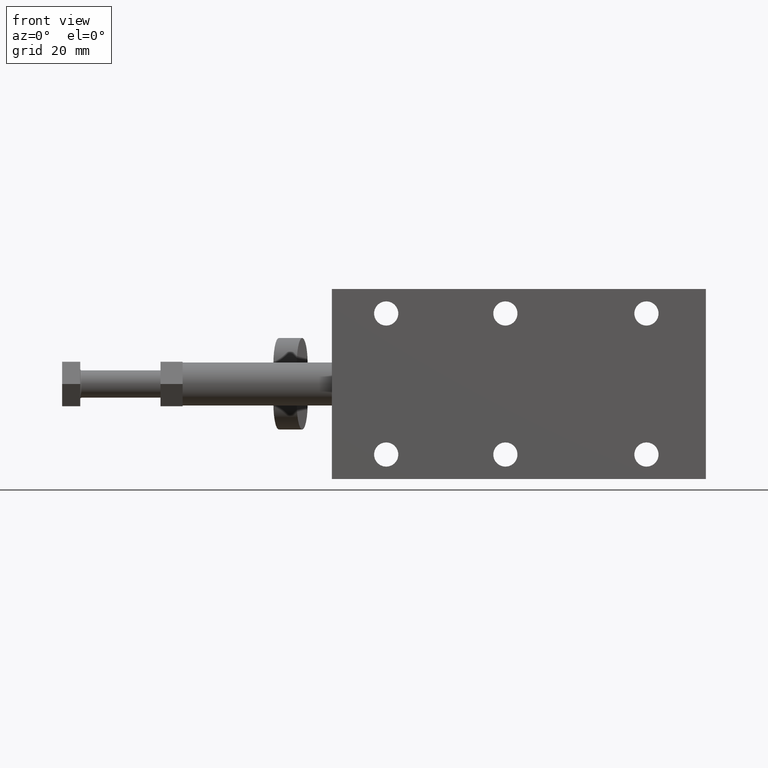
[diagram: clean part render]
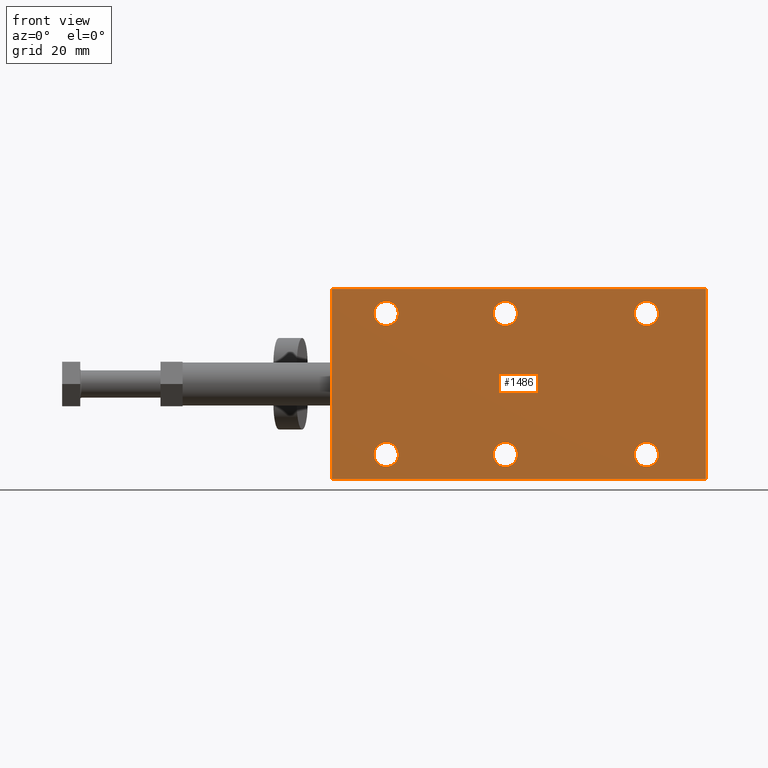
[diagram: same view with one face highlighted and labeled with its STEP entity id]
A machine part, front view. The second image highlights one B-rep face of the part: STEP entity #1486.
In plain terms, the highlighted planar face has unit normal (0, 1, 0).
Its self-contained STEP definition (entity closure, byte-faithful):
#16 = DIRECTION ( 'NONE',  ( 0.0000000000000000000, 0.0000000000000000000, -1.000000000000000000 ) ) ;
#81 = CIRCLE ( 'NONE', #2245, 3.549999999999997600 ) ;
#185 = EDGE_LOOP ( 'NONE', ( #6299, #2187 ) ) ;
#209 = AXIS2_PLACEMENT_3D ( 'NONE', #8143, #3986, #8827 ) ;
#271 = EDGE_LOOP ( 'NONE', ( #3604, #6260 ) ) ;
#345 = DIRECTION ( 'NONE',  ( 0.0000000000000000000, 0.0000000000000000000, 1.000000000000000000 ) ) ;
#378 = CARTESIAN_POINT ( 'NONE',  ( -3.949999999999988200, 0.0000000000000000000, -20.65000000000000200 ) ) ;
#462 = FACE_BOUND ( 'NONE', #966, .T. ) ;
#658 = FACE_BOUND ( 'NONE', #6781, .T. ) ;
#667 = CARTESIAN_POINT ( 'NONE',  ( 54.75000000000000000, 0.0000000000000000000, 27.79999999999999000 ) ) ;
#700 = VERTEX_POINT ( 'NONE', #7680 ) ;
#722 = CARTESIAN_POINT ( 'NONE',  ( 37.35000000000000900, 0.0000000000000000000, -24.19999999999999900 ) ) ;
#909 = CARTESIAN_POINT ( 'NONE',  ( -3.949999999999982900, 0.0000000000000000000, 20.64999999999998100 ) ) ;
#966 = EDGE_LOOP ( 'NONE', ( #3221, #8964 ) ) ;
#1099 = EDGE_CURVE ( 'NONE', #4387, #700, #8644, .T. ) ;
#1171 = EDGE_CURVE ( 'NONE', #3205, #5063, #3870, .T. ) ;
#1176 = ORIENTED_EDGE ( 'NONE', *, *, #5012, .T. ) ;
#1201 = CARTESIAN_POINT ( 'NONE',  ( -38.84999999999998700, 0.0000000000000000000, -20.65000000000000200 ) ) ;
#1205 = AXIS2_PLACEMENT_3D ( 'NONE', #8918, #1957, #6173 ) ;
#1439 = ORIENTED_EDGE ( 'NONE', *, *, #3817, .T. ) ;
#1486 = ADVANCED_FACE ( 'NONE', ( #6053, #4421, #658, #4191, #2321, #462, #7666 ), #5590, .F. ) ;
#1538 = LINE ( 'NONE', #3843, #6904 ) ;
#1616 = DIRECTION ( 'NONE',  ( 0.0000000000000000000, 0.0000000000000000000, -1.000000000000000000 ) ) ;
#1657 = DIRECTION ( 'NONE',  ( -0.0000000000000000000, 1.000000000000000000, 0.0000000000000000000 ) ) ;
#1901 = CARTESIAN_POINT ( 'NONE',  ( -3.949999999999982900, 0.0000000000000000000, 24.19999999999998200 ) ) ;
#1910 = DIRECTION ( 'NONE',  ( 0.0000000000000000000, 0.0000000000000000000, 1.000000000000000000 ) ) ;
#1922 = CARTESIAN_POINT ( 'NONE',  ( 37.35000000000001600, 0.0000000000000000000, 20.64999999999997400 ) ) ;
#1944 = VECTOR ( 'NONE', #4760, 1000.000000000000000 ) ;
#1957 = DIRECTION ( 'NONE',  ( 0.0000000000000000000, 1.000000000000000000, 0.0000000000000000000 ) ) ;
#2145 = ORIENTED_EDGE ( 'NONE', *, *, #3591, .F. ) ;
#2187 = ORIENTED_EDGE ( 'NONE', *, *, #7857, .T. ) ;
#2245 = AXIS2_PLACEMENT_3D ( 'NONE', #3623, #8476, #4341 ) ;
#2301 = EDGE_CURVE ( 'NONE', #6087, #2364, #4822, .T. ) ;
#2309 = AXIS2_PLACEMENT_3D ( 'NONE', #3232, #8121, #3970 ) ;
#2321 = FACE_BOUND ( 'NONE', #8054, .T. ) ;
#2362 = AXIS2_PLACEMENT_3D ( 'NONE', #1922, #6817, #2632 ) ;
#2364 = VERTEX_POINT ( 'NONE', #4914 ) ;
#2458 = AXIS2_PLACEMENT_3D ( 'NONE', #909, #5835, #1616 ) ;
#2484 = CIRCLE ( 'NONE', #2362, 3.550000000000004700 ) ;
#2541 = EDGE_CURVE ( 'NONE', #3306, #8348, #8280, .T. ) ;
#2557 = AXIS2_PLACEMENT_3D ( 'NONE', #378, #3187, #345 ) ;
#2598 = ORIENTED_EDGE ( 'NONE', *, *, #2541, .T. ) ;
#2632 = DIRECTION ( 'NONE',  ( 0.0000000000000000000, 0.0000000000000000000, -1.000000000000000000 ) ) ;
#2655 = LINE ( 'NONE', #4425, #6176 ) ;
#2739 = DIRECTION ( 'NONE',  ( 0.0000000000000000000, 1.000000000000000000, 0.0000000000000000000 ) ) ;
#2769 = VERTEX_POINT ( 'NONE', #6827 ) ;
#2856 = CARTESIAN_POINT ( 'NONE',  ( 37.35000000000001600, 0.0000000000000000000, 24.19999999999997800 ) ) ;
#2961 = ORIENTED_EDGE ( 'NONE', *, *, #5827, .F. ) ;
#2968 = CARTESIAN_POINT ( 'NONE',  ( -3.949999999999988200, 0.0000000000000000000, -20.65000000000000200 ) ) ;
#3187 = DIRECTION ( 'NONE',  ( 0.0000000000000000000, 1.000000000000000000, 0.0000000000000000000 ) ) ;
#3205 = VERTEX_POINT ( 'NONE', #6951 ) ;
#3221 = ORIENTED_EDGE ( 'NONE', *, *, #5299, .T. ) ;
#3232 = CARTESIAN_POINT ( 'NONE',  ( -3.949999999999982900, 0.0000000000000000000, 20.64999999999998100 ) ) ;
#3266 = CARTESIAN_POINT ( 'NONE',  ( -38.84999999999998700, 0.0000000000000000000, -17.10000000000000500 ) ) ;
#3306 = VERTEX_POINT ( 'NONE', #2856 ) ;
#3320 = CARTESIAN_POINT ( 'NONE',  ( 37.35000000000001600, 0.0000000000000000000, 17.09999999999996900 ) ) ;
#3440 = AXIS2_PLACEMENT_3D ( 'NONE', #5875, #1657, #6569 ) ;
#3508 = AXIS2_PLACEMENT_3D ( 'NONE', #8364, #4219, #16 ) ;
#3524 = CARTESIAN_POINT ( 'NONE',  ( -54.75000000000000000, 0.0000000000000000000, -27.79999999999999700 ) ) ;
#3543 = CIRCLE ( 'NONE', #2458, 3.550000000000001200 ) ;
#3591 = EDGE_CURVE ( 'NONE', #4440, #8266, #7313, .T. ) ;
#3604 = ORIENTED_EDGE ( 'NONE', *, *, #6188, .T. ) ;
#3623 = CARTESIAN_POINT ( 'NONE',  ( 37.35000000000000900, 0.0000000000000000000, -20.65000000000000200 ) ) ;
#3692 = DIRECTION ( 'NONE',  ( 0.0000000000000000000, 0.0000000000000000000, 1.000000000000000000 ) ) ;
#3817 = EDGE_CURVE ( 'NONE', #2364, #6087, #81, .T. ) ;
#3843 = CARTESIAN_POINT ( 'NONE',  ( 54.75000000000000000, 0.0000000000000000000, 27.79999999999999000 ) ) ;
#3870 = CIRCLE ( 'NONE', #5383, 3.549999999999997600 ) ;
#3885 = ORIENTED_EDGE ( 'NONE', *, *, #1099, .T. ) ;
#3970 = DIRECTION ( 'NONE',  ( 0.0000000000000000000, 0.0000000000000000000, -1.000000000000000000 ) ) ;
#3986 = DIRECTION ( 'NONE',  ( 0.0000000000000000000, 1.000000000000000000, 0.0000000000000000000 ) ) ;
#4130 = EDGE_CURVE ( 'NONE', #8348, #3306, #2484, .T. ) ;
#4191 = FACE_BOUND ( 'NONE', #4396, .T. ) ;
#4219 = DIRECTION ( 'NONE',  ( -0.0000000000000000000, 1.000000000000000000, 0.0000000000000000000 ) ) ;
#4281 = AXIS2_PLACEMENT_3D ( 'NONE', #6928, #2739, #7623 ) ;
#4326 = DIRECTION ( 'NONE',  ( 0.0000000000000000000, 0.0000000000000000000, -1.000000000000000000 ) ) ;
#4341 = DIRECTION ( 'NONE',  ( 0.0000000000000000000, 0.0000000000000000000, 1.000000000000000000 ) ) ;
#4367 = ORIENTED_EDGE ( 'NONE', *, *, #2301, .T. ) ;
#4387 = VERTEX_POINT ( 'NONE', #5675 ) ;
#4396 = EDGE_LOOP ( 'NONE', ( #1439, #4367 ) ) ;
#4421 = FACE_BOUND ( 'NONE', #271, .T. ) ;
#4425 = CARTESIAN_POINT ( 'NONE',  ( -54.75000000000000000, 0.0000000000000000000, -27.79999999999999700 ) ) ;
#4440 = VERTEX_POINT ( 'NONE', #3524 ) ;
#4646 = AXIS2_PLACEMENT_3D ( 'NONE', #1201, #6122, #1910 ) ;
#4700 = CARTESIAN_POINT ( 'NONE',  ( -54.74999999999998600, 0.0000000000000000000, 27.80000000000000400 ) ) ;
#4705 = EDGE_CURVE ( 'NONE', #2769, #8282, #8015, .T. ) ;
#4760 = DIRECTION ( 'NONE',  ( 2.496005001405477600E-016, -0.0000000000000000000, 1.000000000000000000 ) ) ;
#4822 = CIRCLE ( 'NONE', #4281, 3.549999999999997600 ) ;
#4855 = CIRCLE ( 'NONE', #5245, 3.550000000000001200 ) ;
#4877 = VERTEX_POINT ( 'NONE', #667 ) ;
#4914 = CARTESIAN_POINT ( 'NONE',  ( 37.35000000000000900, 0.0000000000000000000, -17.10000000000000500 ) ) ;
#5012 = EDGE_CURVE ( 'NONE', #700, #4387, #4855, .T. ) ;
#5059 = ORIENTED_EDGE ( 'NONE', *, *, #6701, .F. ) ;
#5063 = VERTEX_POINT ( 'NONE', #7193 ) ;
#5115 = DIRECTION ( 'NONE',  ( -1.000000000000000000, -0.0000000000000000000, 1.267377881992187900E-016 ) ) ;
#5245 = AXIS2_PLACEMENT_3D ( 'NONE', #2968, #7842, #3692 ) ;
#5251 = CIRCLE ( 'NONE', #3508, 3.549999999999997600 ) ;
#5277 = VECTOR ( 'NONE', #7319, 1000.000000000000000 ) ;
#5299 = EDGE_CURVE ( 'NONE', #8844, #6936, #8538, .T. ) ;
#5319 = ORIENTED_EDGE ( 'NONE', *, *, #5850, .F. ) ;
#5383 = AXIS2_PLACEMENT_3D ( 'NONE', #8074, #8789, #4326 ) ;
#5590 = PLANE ( 'NONE',  #1205 ) ;
#5596 = CIRCLE ( 'NONE', #4646, 3.549999999999997600 ) ;
#5675 = CARTESIAN_POINT ( 'NONE',  ( -3.949999999999988200, 0.0000000000000000000, -17.10000000000000100 ) ) ;
#5733 = LINE ( 'NONE', #6629, #5277 ) ;
#5827 = EDGE_CURVE ( 'NONE', #4877, #8606, #5733, .T. ) ;
#5835 = DIRECTION ( 'NONE',  ( -0.0000000000000000000, 1.000000000000000000, 0.0000000000000000000 ) ) ;
#5850 = EDGE_CURVE ( 'NONE', #8266, #4877, #1538, .T. ) ;
#5875 = CARTESIAN_POINT ( 'NONE',  ( 37.35000000000001600, 0.0000000000000000000, 20.64999999999997400 ) ) ;
#6053 = FACE_BOUND ( 'NONE', #185, .T. ) ;
#6087 = VERTEX_POINT ( 'NONE', #722 ) ;
#6122 = DIRECTION ( 'NONE',  ( 0.0000000000000000000, 1.000000000000000000, 0.0000000000000000000 ) ) ;
#6173 = DIRECTION ( 'NONE',  ( 0.0000000000000000000, -0.0000000000000000000, 1.000000000000000000 ) ) ;
#6176 = VECTOR ( 'NONE', #5115, 1000.000000000000000 ) ;
#6188 = EDGE_CURVE ( 'NONE', #8282, #2769, #3543, .T. ) ;
#6260 = ORIENTED_EDGE ( 'NONE', *, *, #4705, .T. ) ;
#6299 = ORIENTED_EDGE ( 'NONE', *, *, #1171, .T. ) ;
#6569 = DIRECTION ( 'NONE',  ( 0.0000000000000000000, 0.0000000000000000000, -1.000000000000000000 ) ) ;
#6629 = CARTESIAN_POINT ( 'NONE',  ( 54.75000000000000000, 0.0000000000000000000, -27.80000000000001100 ) ) ;
#6701 = EDGE_CURVE ( 'NONE', #8606, #4440, #2655, .T. ) ;
#6781 = EDGE_LOOP ( 'NONE', ( #2598, #7397 ) ) ;
#6817 = DIRECTION ( 'NONE',  ( -0.0000000000000000000, 1.000000000000000000, 0.0000000000000000000 ) ) ;
#6827 = CARTESIAN_POINT ( 'NONE',  ( -3.949999999999982000, 0.0000000000000000000, 17.09999999999998000 ) ) ;
#6904 = VECTOR ( 'NONE', #8688, 1000.000000000000000 ) ;
#6928 = CARTESIAN_POINT ( 'NONE',  ( 37.35000000000000900, 0.0000000000000000000, -20.65000000000000200 ) ) ;
#6936 = VERTEX_POINT ( 'NONE', #8843 ) ;
#6951 = CARTESIAN_POINT ( 'NONE',  ( -38.84999999999998000, 0.0000000000000000000, 24.19999999999999200 ) ) ;
#7193 = CARTESIAN_POINT ( 'NONE',  ( -38.84999999999998000, 0.0000000000000000000, 17.09999999999999800 ) ) ;
#7313 = LINE ( 'NONE', #8896, #1944 ) ;
#7319 = DIRECTION ( 'NONE',  ( -0.0000000000000000000, -0.0000000000000000000, -1.000000000000000000 ) ) ;
#7397 = ORIENTED_EDGE ( 'NONE', *, *, #4130, .T. ) ;
#7511 = EDGE_LOOP ( 'NONE', ( #2145, #5059, #2961, #5319 ) ) ;
#7623 = DIRECTION ( 'NONE',  ( 0.0000000000000000000, 0.0000000000000000000, 1.000000000000000000 ) ) ;
#7666 = FACE_OUTER_BOUND ( 'NONE', #7511, .T. ) ;
#7680 = CARTESIAN_POINT ( 'NONE',  ( -3.949999999999987300, 0.0000000000000000000, -24.20000000000000300 ) ) ;
#7692 = EDGE_CURVE ( 'NONE', #6936, #8844, #5596, .T. ) ;
#7842 = DIRECTION ( 'NONE',  ( 0.0000000000000000000, 1.000000000000000000, 0.0000000000000000000 ) ) ;
#7856 = CARTESIAN_POINT ( 'NONE',  ( 54.75000000000000000, 0.0000000000000000000, -27.80000000000001100 ) ) ;
#7857 = EDGE_CURVE ( 'NONE', #5063, #3205, #5251, .T. ) ;
#8015 = CIRCLE ( 'NONE', #2309, 3.550000000000001200 ) ;
#8054 = EDGE_LOOP ( 'NONE', ( #3885, #1176 ) ) ;
#8074 = CARTESIAN_POINT ( 'NONE',  ( -38.84999999999998000, 0.0000000000000000000, 20.64999999999999500 ) ) ;
#8121 = DIRECTION ( 'NONE',  ( -0.0000000000000000000, 1.000000000000000000, 0.0000000000000000000 ) ) ;
#8143 = CARTESIAN_POINT ( 'NONE',  ( -38.84999999999998700, 0.0000000000000000000, -20.65000000000000200 ) ) ;
#8266 = VERTEX_POINT ( 'NONE', #4700 ) ;
#8280 = CIRCLE ( 'NONE', #3440, 3.550000000000004700 ) ;
#8282 = VERTEX_POINT ( 'NONE', #1901 ) ;
#8348 = VERTEX_POINT ( 'NONE', #3320 ) ;
#8364 = CARTESIAN_POINT ( 'NONE',  ( -38.84999999999998000, 0.0000000000000000000, 20.64999999999999500 ) ) ;
#8476 = DIRECTION ( 'NONE',  ( 0.0000000000000000000, 1.000000000000000000, 0.0000000000000000000 ) ) ;
#8538 = CIRCLE ( 'NONE', #209, 3.549999999999997600 ) ;
#8606 = VERTEX_POINT ( 'NONE', #7856 ) ;
#8644 = CIRCLE ( 'NONE', #2557, 3.550000000000001200 ) ;
#8688 = DIRECTION ( 'NONE',  ( 1.000000000000000000, -0.0000000000000000000, -1.267377881992188100E-016 ) ) ;
#8789 = DIRECTION ( 'NONE',  ( -0.0000000000000000000, 1.000000000000000000, 0.0000000000000000000 ) ) ;
#8827 = DIRECTION ( 'NONE',  ( 0.0000000000000000000, 0.0000000000000000000, 1.000000000000000000 ) ) ;
#8843 = CARTESIAN_POINT ( 'NONE',  ( -38.84999999999998700, 0.0000000000000000000, -24.19999999999999900 ) ) ;
#8844 = VERTEX_POINT ( 'NONE', #3266 ) ;
#8896 = CARTESIAN_POINT ( 'NONE',  ( -54.74999999999998600, 0.0000000000000000000, 27.80000000000000400 ) ) ;
#8918 = CARTESIAN_POINT ( 'NONE',  ( -54.74999999999995700, 0.0000000000000000000, 27.80000000000000400 ) ) ;
#8964 = ORIENTED_EDGE ( 'NONE', *, *, #7692, .T. ) ;